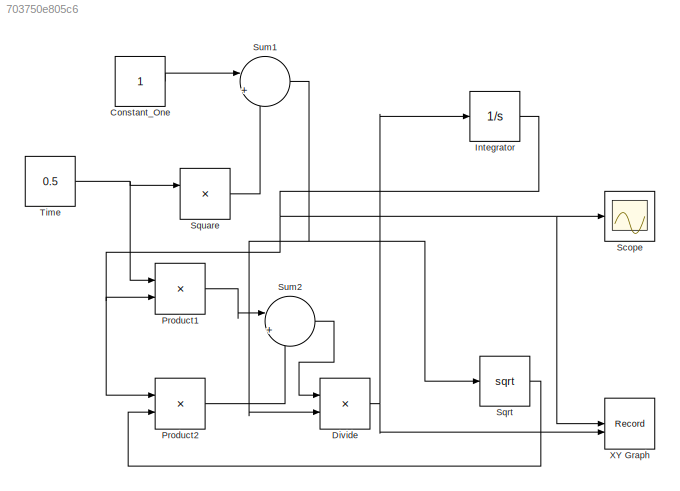
MODEL slx_703750e805c6
KIND model
CONFIG AbsTol = auto
CONFIG EnableMultiTasking = off
CONFIG FixedStep = auto
CONFIG MaxStep = 0.01
CONFIG MinStep = auto
CONFIG RelTol = 1e-3
CONFIG SampleTimeConstraint = Unconstrained
CONFIG SolverName = ode45
CONFIG StartTime = 0
CONFIG StopTime = 10
BLOCK [Constant] Constant_One
BLOCK [Product] Divide
  Inputs = */
BLOCK [Integrator] Integrator
  InitialCondition = 1
BLOCK [Product] Product1
BLOCK [Product] Product2
BLOCK [Scope] Scope
  Floating = off
  NumInputPorts = 1
  ScopeSpecificationString = Simulink.scopes.TimeScopeBlockCfg('CurrentConfiguration', extmgr.ConfigurationSet(extmgr.Configuration('Core','General UI',true),extmgr.Configuration('Core','Source UI',true),extmgr.Configuration('Sources','WiredSimulink',true),extmgr.Configuration('Visuals','Time Domain',true,'SerializedDisplays',{struct('MinYLimReal','-0.11742','MaxYLimReal','1.12416','YLabelReal','','MinYLimMag','0.00000','MaxY...<+1445ch>
BLOCK [Math] Sqrt
  Operator = sqrt
BLOCK [Product] Square
BLOCK [Sum] Sum1
  Inputs = |++
BLOCK [Sum] Sum2
  Inputs = |+-
BLOCK [Constant] Time
  Value = 0.5
BLOCK [Record] XY Graph
  CompatibilityTag = XY
  FileSettingsInternal = {"entries":[{"content":{"excelSettings":{"content":{},"type":"Streamout.ExcelSettings"}},"type":"Streamout.FileSettingStorage","uuid":""}],"packageUris":["http:\/\/schema.mathworks.com\/mf0\/streamout_blocks\/R2020a"],"version":"1.0"}
  Layout = [1 1]
  SignalsInternal = {"entries":[{"content":{"signals":[{"content":{"blockPath":[],"dimensions":[1],"domain":"","lineColor":"#a2142f","plots":[ 1 ],"port":1,"sid":[""],"signalID":1,"signalName":"Integrator"},"type":"RecordBlkView.Signal","uuid":""},{"content":{"blockPath":[],"dimensions":[1],"domain":"","lineColor":"#139fff","plots":[ 1 ],"port":2,"sid":[""],"signalID":2,"signalName":"Divide"},"type":"RecordBlkView.Si...<+162ch>
  VisualizationBindings = {"xyplotplugin":{"info":[{"series":[{"bindingParametersList":[{"parameter":"X-Axis","signalID":1,"signalName":"Integrator"},{"parameter":"Y-Axis","signalID":2,"signalName":"Divide"}],"seriesID":0}],"subplotID":1}]}}
LINE Constant_One:1 -> Sum1:1
NET Divide:1 -> Integrator:1, XY Graph:2
NET Integrator:1 -> Product1:2, Product2:1, Scope:1, XY Graph:1
LINE Product1:1 -> Sum2:1
LINE Product2:1 -> Sum2:2
LINE Sqrt:1 -> Product2:2
LINE Square:1 -> Sum1:2
NET Sum1:1 -> Divide:2, Sqrt:1
LINE Sum2:1 -> Divide:1
NET Time:1 -> Product1:1, Square:1
note: NET lines group one-source signal fan-out (src -> all destinations, sorted); 1:1 wires keep LINE
